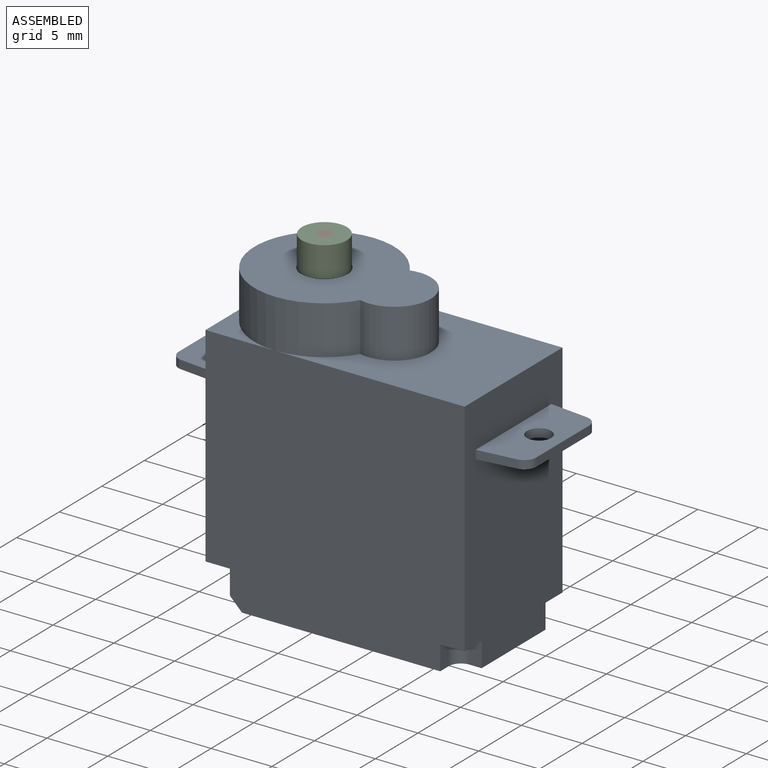
[diagram: assembled view]
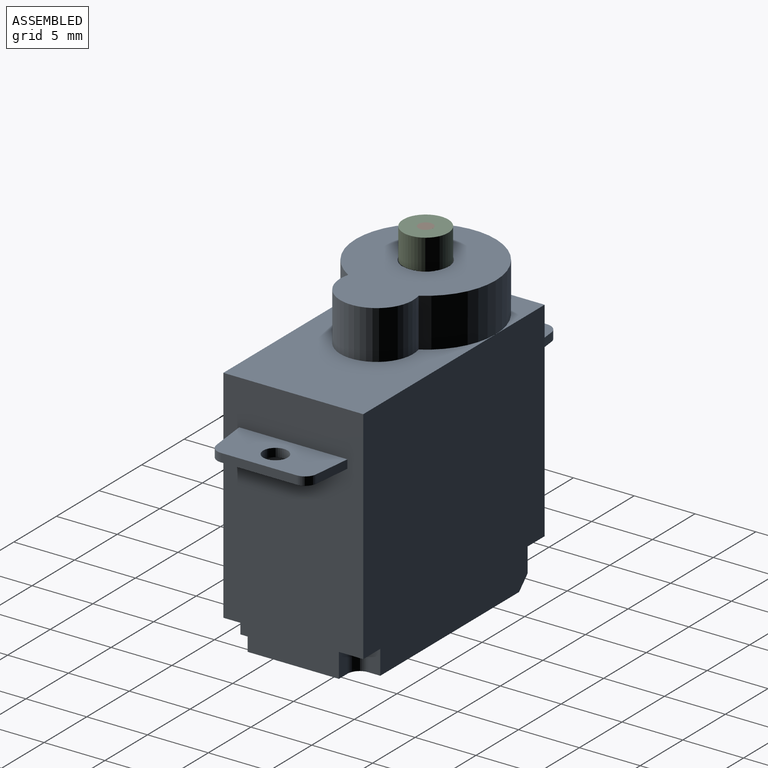
[diagram: assembled view, second angle]
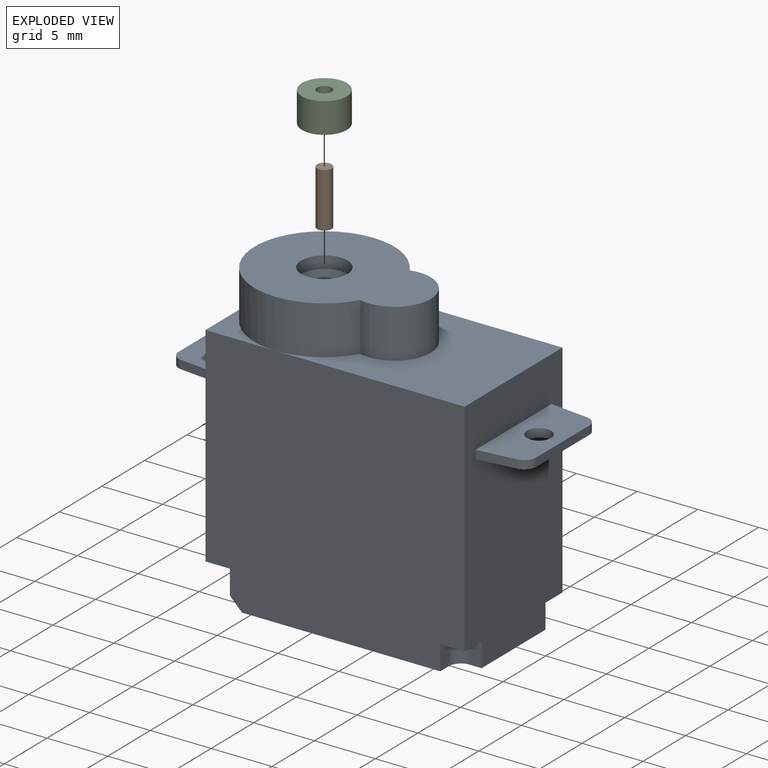
[diagram: exploded view]
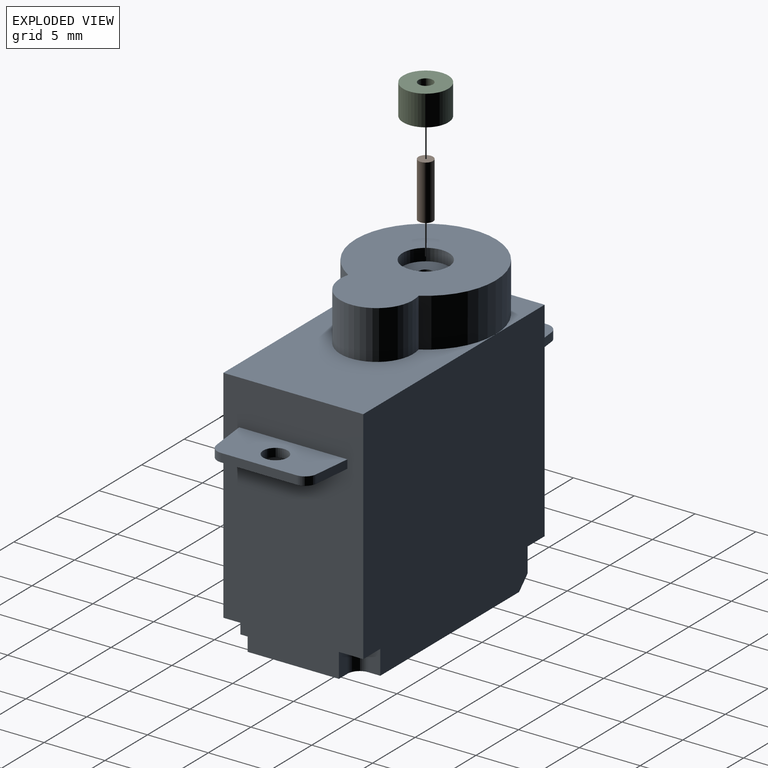
[diagram: exploded view, second angle]
ASSEMBLY  parts=3 mates=2
PART A: 52 faces, bbox 29.4x11.5x24.2 mm
  f0: plane 21.3x20.2mm, normal (0,-1,0), area 419.8mm2, adj f2,f3,f4,f12,f13,f14,f32,f33
  f1: plane 21.3x20.2mm, normal (0,1,0), area 419.8mm2, adj f2,f3,f4,f5,f13,f14,f28,f30
  f2: plane 18.3x11.5mm, normal (0,0,-1), area 202.9mm2, adj f0,f1,f3,f14,f29,f30,f31,f33
  f3: plane 20.2x11.5mm, normal (1,0,0), area 218.1mm2, adj f0,f1,f2,f4,f6,f10,f15,f18
  f4: plane 15.55x11.5mm, normal (0,0,1), area 111.2mm2, adj f0,f1,f3,f25,f26
  f5: plane 5.75x5.75mm, normal (0,0,1), area 7.1mm2, adj f1,f13,f25
  f6: plane 8.9x4.05mm, normal (0,0,1), area 30.8mm2, adj f3,f11,f15,f18,f19,f23,f24
  f7: plane 8.9x4.05mm, normal (0,0,1), area 30.8mm2, adj f8,f13,f16,f17,f20,f21,f22
  f8: plane 6.21x0.7mm, normal (-1,0,0), area 4.3mm2, adj f7,f9,f21,f22
  f9: plane 8.9x4.05mm, normal (0,0,-1), area 30.8mm2, adj f8,f13,f16,f17,f20,f21,f22
  f10: plane 8.9x4.05mm, normal (0,0,-1), area 30.8mm2, adj f3,f11,f15,f18,f19,f23,f24
  f11: plane 6.21x0.7mm, normal (1,0,0), area 4.3mm2, adj f6,f10,f23,f24
  f12: plane 5.75x5.75mm, normal (0,0,1), area 7.1mm2, adj f0,f13,f25
  f13: plane 17.2x11.5mm, normal (-1,0,0), area 191.6mm2, adj f0,f1,f5,f7,f9,f12,f14,f16
  f14: plane 11.5x3mm, normal (-0.71,0,-0.71), area 32.3mm2, adj f0,f1,f2,f13,f34,f35,f36,f38
  f15: plane 3.16x0.7mm, normal (0.11,0.99,0), area 2.2mm2, adj f3,f6,f10,f24
  f16: plane 3.16x0.7mm, normal (-0.11,0.99,0), area 2.2mm2, adj f7,f9,f13,f22
  f17: plane 3.16x0.7mm, normal (-0.11,-0.99,0), area 2.2mm2, adj f7,f9,f13,f21
  f18: plane 3.16x0.7mm, normal (0.11,-0.99,0), area 2.2mm2, adj f3,f6,f10,f23
  f19: cylinder r=1mm len=2mm, axis (0,0,1), area 4.4mm2, adj f6,f10
  f20: cylinder r=1mm len=2mm, axis (0,0,1), area 4.4mm2, adj f7,f9
  f21: cylinder r=1mm len=0.99mm, axis (0,0,1), area 1mm2, adj f7,f8,f9,f17
  f22: cylinder r=1mm len=0.99mm, axis (0,0,-1), area 1mm2, adj f7,f8,f9,f16
  f23: cylinder r=1mm len=0.99mm, axis (0,0,1), area 1mm2, adj f6,f10,f11,f18
  f24: cylinder r=1mm len=0.99mm, axis (0,0,-1), area 1mm2, adj f6,f10,f11,f15
  f25: cylinder r=5.75mm len=11.5mm, axis (0,0,-1), area 120.2mm2, adj f4,f5,f12,f26,f27
  f26: cylinder r=3mm len=6mm, axis (0,0,-1), area 44mm2, adj f4,f25,f27
  f27: plane 14.5x11.5mm, normal (0,0,1), area 108.2mm2, adj f25,f26,f48
  f28: plane 2x2mm, normal (0,0,-1), area 3.8mm2, adj f1,f3,f29,f30,f46
  f29: plane 2x1mm, normal (0,1,0), area 2mm2, adj f2,f3,f28,f46
  f30: plane 2x1mm, normal (1,0,0), area 2mm2, adj f1,f2,f28,f46
  f31: plane 2x1mm, normal (0,-1,0), area 2mm2, adj f2,f3,f32,f47
  f32: plane 2x2mm, normal (0,0,-1), area 3.8mm2, adj f0,f3,f31,f33,f47
  f33: plane 2x1mm, normal (1,0,0), area 2mm2, adj f0,f2,f32,f47
  f34: plane 1.2x1.2mm, normal (0,-1,0), area 0.7mm2, adj f14,f35,f37
  f35: plane 3.4x1.2mm, normal (-1,0,0), area 4.1mm2, adj f14,f34,f36,f37
  f36: plane 1.2x1.2mm, normal (0,1,0), area 0.7mm2, adj f14,f35,f37
  f37: plane 3.4x1.2mm, normal (0,0,-1), area 4.1mm2, adj f13,f34,f35,f36
  f38: plane 2x1mm, normal (-1,0,0), area 2mm2, adj f1,f14,f40,f44
  f39: plane 1x1mm, normal (0,1,0), area 0.5mm2, adj f14,f40,f44
  f40: plane 2x2mm, normal (0,0,-1), area 3.8mm2, adj f1,f13,f38,f39,f44
  f41: plane 1x1mm, normal (0,-1,0), area 0.5mm2, adj f14,f43,f45
  f42: plane 2x1mm, normal (-1,0,0), area 2mm2, adj f0,f14,f43,f45
  f43: plane 2x2mm, normal (0,0,-1), area 3.8mm2, adj f0,f13,f41,f42,f45
  f44: cylinder r=1mm len=2mm, axis (0,0,-1), area 2.6mm2, adj f14,f38,f39,f40
  f45: cylinder r=1mm len=2mm, axis (0,0,-1), area 2.6mm2, adj f14,f41,f42,f43
  f46: cylinder r=1mm len=2mm, axis (0,0,-1), area 3.1mm2, adj f2,f28,f29,f30
  f47: cylinder r=1mm len=2mm, axis (0,0,1), area 3.1mm2, adj f2,f31,f32,f33
  f48: cylinder r=1.9mm len=3.8mm, axis (0,0,1), area 11.9mm2, adj f27,f49
  f49: plane 3.8x3.8mm, normal (0,0,1), area 10.2mm2, adj f48,f50
  f50: cylinder r=0.6mm len=1.2mm, axis (0,0,1), area 3.8mm2, adj f49,f51
  f51: plane 1.2x1.2mm, normal (0,0,1), area 1.1mm2, adj f50
PART B: 3 faces, bbox 1.2x1.2x4.5 mm
  f0: cylinder r=0.6mm len=4.5mm, axis (0,0,-1), area 17mm2, adj f1,f2
  f1: plane 1.2x1.2mm, normal (0,0,1), area 1.1mm2, adj f0
  f2: plane 1.2x1.2mm, normal (0,0,-1), area 1.1mm2, adj f0
PART C: 4 faces, bbox 3.7x3.7x2.5 mm
  f0: cylinder r=0.6mm len=2.5mm, axis (0,0,-1), area 9.4mm2, adj f2,f3
  f1: cylinder r=1.85mm len=3.7mm, axis (0,0,-1), area 29.1mm2, adj f2,f3
  f2: plane 3.7x3.7mm, normal (0,0,1), area 9.6mm2, adj f0,f1
  f3: plane 3.7x3.7mm, normal (0,0,-1), area 9.6mm2, adj f0,f1
PLACE A t=(-23.37,2.79,-5.53)mm fixed
PLACE B rot(axis=(0,0,1),143.7deg) t=(-17.62,-2.96,16.67)mm
PLACE C rot(axis=(0,0,1),143.7deg) t=(-17.62,-2.96,18.67)mm
MATE fastened C.f0 <-> B.f0  axis (0,0,1) through (-17.62,-2.96,21.17)mm
MATE revolute B.f0 <-> A.f25  axis (0,0,-1) through (-17.62,-2.96,16.67)mm
